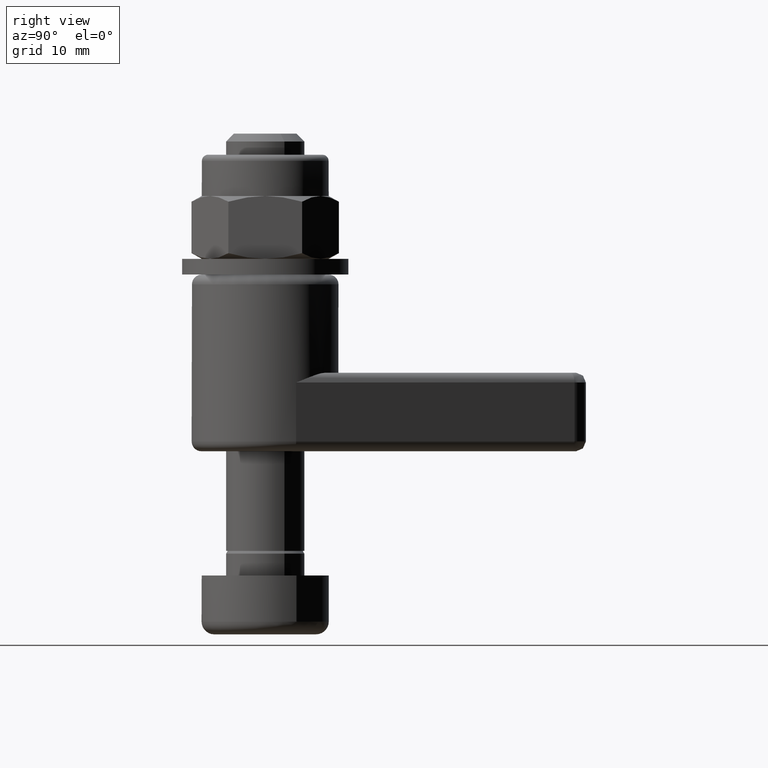
[diagram: clean part render]
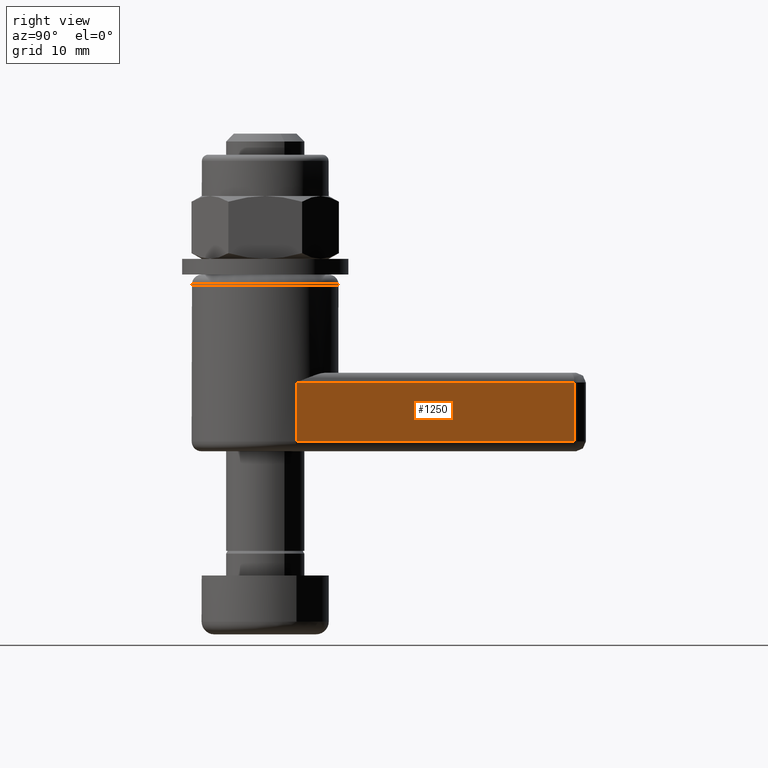
[diagram: same view with one face highlighted and labeled with its STEP entity id]
A machine part, right view. The second image highlights one B-rep face of the part: STEP entity #1250.
In plain terms, the highlighted planar face has unit normal (0.9076, 0.4199, -0).
Its self-contained STEP definition (entity closure, byte-faithful):
#136=LINE('',#2307,#201);
#140=LINE('',#2327,#205);
#141=LINE('',#2340,#206);
#142=LINE('',#2341,#207);
#201=VECTOR('',#1828,10.);
#205=VECTOR('',#1840,10.);
#206=VECTOR('',#1845,10.);
#207=VECTOR('',#1846,10.);
#317=FACE_OUTER_BOUND('',#402,.T.);
#402=EDGE_LOOP('',(#1053,#1054,#1055,#1056));
#578=VERTEX_POINT('',#2260);
#589=VERTEX_POINT('',#2302);
#595=VERTEX_POINT('',#2326);
#597=VERTEX_POINT('',#2339);
#747=EDGE_CURVE('',#578,#589,#136,.T.);
#755=EDGE_CURVE('',#589,#595,#140,.T.);
#758=EDGE_CURVE('',#597,#578,#141,.T.);
#759=EDGE_CURVE('',#595,#597,#142,.T.);
#1053=ORIENTED_EDGE('',*,*,#747,.F.);
#1054=ORIENTED_EDGE('',*,*,#758,.F.);
#1055=ORIENTED_EDGE('',*,*,#759,.F.);
#1056=ORIENTED_EDGE('',*,*,#755,.F.);
#1178=PLANE('',#1518);
#1250=ADVANCED_FACE('',(#317),#1178,.T.);
#1518=AXIS2_PLACEMENT_3D('',#2338,#1843,#1844);
#1828=DIRECTION('',(0.782336613391328,-0.622855860811623,0.));
#1840=DIRECTION('',(0.,0.,1.));
#1843=DIRECTION('center_axis',(0.622855860811623,0.782336613391328,0.));
#1844=DIRECTION('ref_axis',(-0.782336613391328,0.622855860811623,0.));
#1845=DIRECTION('',(0.,0.,-1.));
#1846=DIRECTION('',(-0.782336613391328,0.622855860811623,0.));
#2260=CARTESIAN_POINT('',(-19.7682093782966,25.3250899036128,1.));
#2302=CARTESIAN_POINT('',(4.67141895608717,5.86752460043496,1.));
#2307=CARTESIAN_POINT('',(4.67141906177147,5.8675245162946,1.));
#2326=CARTESIAN_POINT('',(4.67141895608717,5.86752460043496,7.));
#2327=CARTESIAN_POINT('',(4.67141895608717,5.86752460043496,0.));
#2338=CARTESIAN_POINT('Origin',(4.67141895608719,5.86752460043495,0.));
#2339=CARTESIAN_POINT('',(-19.7682093782966,25.3250899036128,7.));
#2340=CARTESIAN_POINT('',(-19.7682093782966,25.3250899036128,0.));
#2341=CARTESIAN_POINT('',(4.67141906177147,5.8675245162946,7.));